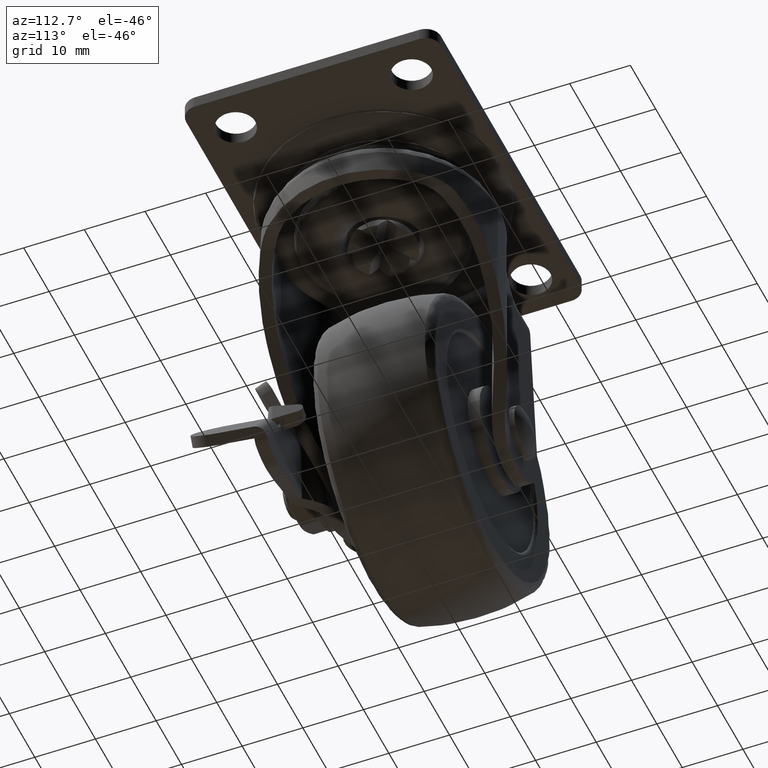
[diagram: clean part render]
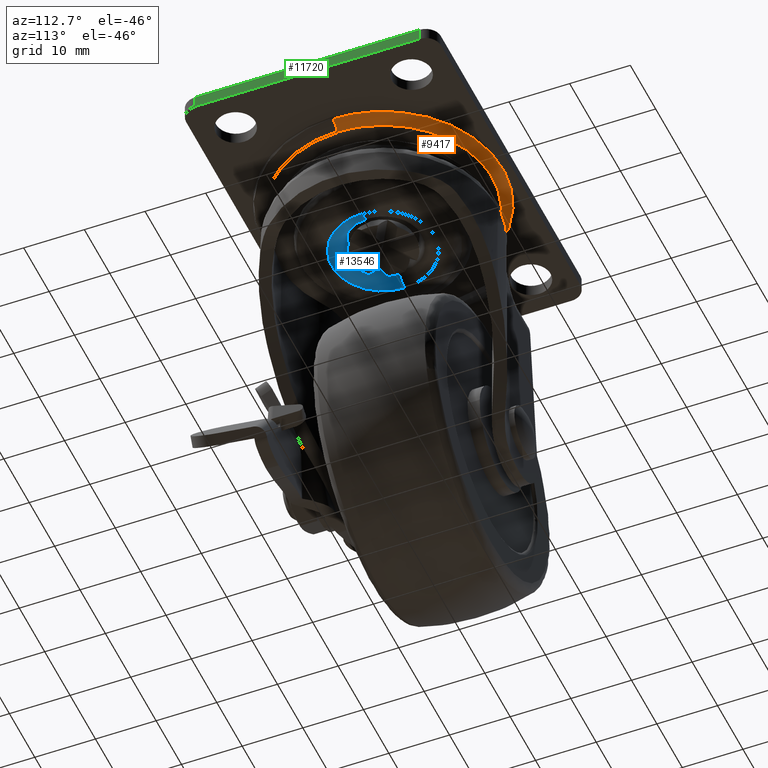
[diagram: same view with three faces highlighted in distinct colors, each labeled with its STEP entity id]
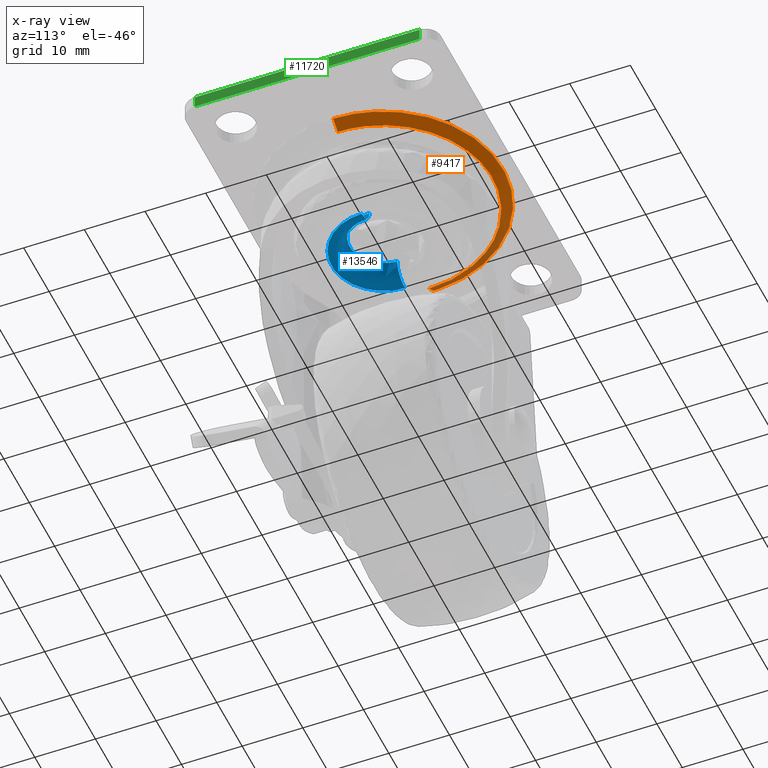
[diagram: x-ray of the same camera — body ghosted, the three highlighted faces saturated]
A machine part, auxiliary view with three faces highlighted in distinct colors.
The next image is the same camera in x-ray (body ghosted, the three faces saturated) — at least one of them is partly hidden behind the body in this view.
Their STEP definitions:

[orange] entity #9417 — the highlighted face is a freeform B-spline surface patch.
#9180=CARTESIAN_POINT('',(-17.967794168879529,7.266735E-015,-3.448837009886887));
#9181=VERTEX_POINT('',#9180);
#9197=CARTESIAN_POINT('',(-10.005826407057571,14.923976083037379,-3.448836947906459));
#9198=VERTEX_POINT('',#9197);
#9199=CARTESIAN_POINT('',(-17.967794168879529,7.266735E-015,-3.448837009886887));
#9200=CARTESIAN_POINT('',(-17.967794159970676,9.585849988176255,-3.448836986129341));
#9201=CARTESIAN_POINT('',(-10.005826407057565,14.923976083037379,-3.448836947906459));
#9209=(BOUNDED_CURVE()B_SPLINE_CURVE(2,(#9199,#9200,#9201),.UNSPECIFIED.,.F.,.U.)B_SPLINE_CURVE_WITH_KNOTS((3,3),(0.0,0.154483115044822),.UNSPECIFIED.)CURVE()GEOMETRIC_REPRESENTATION_ITEM()RATIONAL_B_SPLINE_CURVE((1.0,0.819011772728773,0.861700546539941))REPRESENTATION_ITEM(''));
#9210=EDGE_CURVE('',#9181,#9198,#9209,.T.);
#9272=CARTESIAN_POINT('',(17.967794126128311,7.186081E-015,-3.448836944598952));
#9273=VERTEX_POINT('',#9272);
#9291=CARTESIAN_POINT('',(-10.005826407057565,14.923976083037379,-3.448836947906459));
#9292=CARTESIAN_POINT('',(-5.465884856966354,17.967794058958017,-3.448836943513973));
#9293=CARTESIAN_POINT('',(-7.713862E-009,17.967794063000230,-3.448836940810682));
#9294=CARTESIAN_POINT('',(17.967794130881206,17.967794076288037,-3.448836931924260));
#9295=CARTESIAN_POINT('',(17.967794126128311,7.186081E-015,-3.448836944598952));
#9303=(BOUNDED_CURVE()B_SPLINE_CURVE(2,(#9291,#9292,#9293,#9294,#9295),.UNSPECIFIED.,.F.,.U.)B_SPLINE_CURVE_WITH_KNOTS((3,2,3),(0.154483115044822,0.250000000000000,0.500000000000000),.UNSPECIFIED.)CURVE()GEOMETRIC_REPRESENTATION_ITEM()RATIONAL_B_SPLINE_CURVE((0.861700546539941,0.888095008457774,1.0,0.707106781186548,1.0))REPRESENTATION_ITEM(''));
#9304=EDGE_CURVE('',#9198,#9273,#9303,.T.);
#9309=CARTESIAN_POINT('',(-17.878958393172443,-0.499837350001566,-3.506934187856735));
#9310=CARTESIAN_POINT('',(-18.859286881559211,-0.527244136403251,-2.866455194141534));
#9311=CARTESIAN_POINT('',(-19.826528489806680,-0.554285056329677,-2.206378715384771));
#9312=CARTESIAN_POINT('',(-17.878958393172447,-0.251374138794523,-3.506934187856736));
#9313=CARTESIAN_POINT('',(-18.859286881559211,-0.265157337126595,-2.866455194141533));
#9314=CARTESIAN_POINT('',(-19.826528489806687,-0.278756536863661,-2.206378715384771));
#9315=CARTESIAN_POINT('',(-17.878958393172464,17.878958393172464,-3.506934187856728));
#9316=CARTESIAN_POINT('',(-18.859286881559225,18.859286881559225,-2.866455194141526));
#9317=CARTESIAN_POINT('',(-19.826528489806702,19.826528489806687,-2.206378715384764));
#9318=CARTESIAN_POINT('',(0.0,17.878958393172471,-3.506934187856735));
#9319=CARTESIAN_POINT('',(0.0,18.859286881559221,-2.866455194141533));
#9320=CARTESIAN_POINT('',(0.0,19.826528489806702,-2.206378715384771));
#9321=CARTESIAN_POINT('',(17.878958393172450,17.878958393172482,-3.506934187856728));
#9322=CARTESIAN_POINT('',(18.859286881559207,18.859286881559225,-2.866455194141526));
#9323=CARTESIAN_POINT('',(19.826528489806687,19.826528489806702,-2.206378715384764));
#9324=CARTESIAN_POINT('',(17.878958393172447,-0.251374138794521,-3.506934187856736));
#9325=CARTESIAN_POINT('',(18.859286881559211,-0.265157337126593,-2.866455194141533));
#9326=CARTESIAN_POINT('',(19.826528489806677,-0.278756536863659,-2.206378715384771));
#9327=CARTESIAN_POINT('',(17.878958393172443,-0.499837350001562,-3.506934187856735));
#9328=CARTESIAN_POINT('',(18.859286881559200,-0.527244136403247,-2.866455194141534));
#9329=CARTESIAN_POINT('',(19.826528489806684,-0.554285056329672,-2.206378715384771));
#9337=(BOUNDED_SURFACE()B_SPLINE_SURFACE(2,2,((#9309,#9312,#9315,#9318,#9321,#9324,#9327),(#9310,#9313,#9316,#9319,#9322,#9325,#9328),(#9311,#9314,#9317,#9320,#9323,#9326,#9329)),.UNSPECIFIED.,.F.,.F.,.U.)B_SPLINE_SURFACE_WITH_KNOTS((3,3),(3,1,2,1,3),(0.0,2.346661540120819),(0.0,0.656993359620365,33.506661340638317,66.356329321656276,67.013322681276634),.UNSPECIFIED.)GEOMETRIC_REPRESENTATION_ITEM()RATIONAL_B_SPLINE_SURFACE(((0.967957524729334,0.962353021665173,0.676523365392959,0.956748518601012,0.676523365392959,0.962353021665173,0.967957524729334),(0.965942650416256,0.960349813534725,0.675115132576640,0.954756976653194,0.675115132576640,0.960349813534725,0.965942650416256),(0.964029572695671,0.958447812591450,0.673778047276177,0.952866052487229,0.673778047276177,0.958447812591450,0.964029572695671)))REPRESENTATION_ITEM('')SURFACE());
#9338=CARTESIAN_POINT('',(-19.738482955493620,7.280491E-015,-2.266404726515944));
#9339=VERTEX_POINT('',#9338);
#9340=CARTESIAN_POINT('',(-17.967794168879529,7.266735E-015,-3.448837009886886));
#9341=CARTESIAN_POINT('',(-18.858547330327294,7.273912E-015,-2.865720480932562));
#9342=CARTESIAN_POINT('',(-19.738482955493616,7.280491E-015,-2.266404726515944));
#9350=(BOUNDED_CURVE()B_SPLINE_CURVE(2,(#9340,#9341,#9342),.UNSPECIFIED.,.F.,.U.)B_SPLINE_CURVE_WITH_KNOTS((3,3),(0.077765708664373,0.085695271759721),.UNSPECIFIED.)CURVE()GEOMETRIC_REPRESENTATION_ITEM()RATIONAL_B_SPLINE_CURVE((0.956567842353955,0.954761339502467,0.953038006954824))REPRESENTATION_ITEM(''));
#9351=EDGE_CURVE('',#9181,#9339,#9350,.T.);
#9352=ORIENTED_EDGE('',*,*,#9351,.T.);
#9353=CARTESIAN_POINT('',(-19.724458226879221,0.743947028509194,-2.266404724086372));
#9354=VERTEX_POINT('',#9353);
#9355=CARTESIAN_POINT('',(-19.738482955493620,7.280491E-015,-2.266404726515944));
#9356=CARTESIAN_POINT('',(-19.738482957275910,0.372105709898370,-2.266404725301157));
#9357=CARTESIAN_POINT('',(-19.724458226879218,0.743947028509194,-2.266404724086373));
#9365=(BOUNDED_CURVE()B_SPLINE_CURVE(2,(#9355,#9356,#9357),.UNSPECIFIED.,.F.,.U.)B_SPLINE_CURVE_WITH_KNOTS((3,3),(0.0,0.006613471418702),.UNSPECIFIED.)CURVE()GEOMETRIC_REPRESENTATION_ITEM()RATIONAL_B_SPLINE_CURVE((1.0,0.992251836274583,0.984913610623929))REPRESENTATION_ITEM(''));
#9366=EDGE_CURVE('',#9339,#9354,#9365,.T.);
#9367=ORIENTED_EDGE('',*,*,#9366,.T.);
#9368=CARTESIAN_POINT('',(19.738482955493620,7.280491E-015,-2.266404726515952));
#9369=VERTEX_POINT('',#9368);
#9370=CARTESIAN_POINT('',(-19.724458226879221,0.743947028509194,-2.266404724086372));
#9371=CARTESIAN_POINT('',(-19.685429487978301,1.780255353292062,-2.266404724087602));
#9372=CARTESIAN_POINT('',(-19.438865554485819,3.886435049534467,-2.266404724100391));
#9373=CARTESIAN_POINT('',(-18.584748811807650,6.888918850746023,-2.266404724149544));
#9374=CARTESIAN_POINT('',(-17.405273823368010,9.428506826221074,-2.266404724219252));
#9375=CARTESIAN_POINT('',(-16.185886309420461,11.351418811551060,-2.266404724292108));
#9376=CARTESIAN_POINT('',(-14.909609762444729,12.988745288680169,-2.266404724368773));
#9377=CARTESIAN_POINT('',(-13.553343299568740,14.401008457029210,-2.266404724450659));
#9378=CARTESIAN_POINT('',(-11.903595639439670,15.789240136399350,-2.266404724550569));
#9379=CARTESIAN_POINT('',(-9.920373908696421,17.135860788100729,-2.266404724671076));
#9380=CARTESIAN_POINT('',(-7.769347624029045,18.201775639419889,-2.266404724802273));
#9381=CARTESIAN_POINT('',(-5.243543731765489,19.083289484120119,-2.266404724956574));
#9382=CARTESIAN_POINT('',(-3.013785413596319,19.562094883282029,-2.266404725093451));
#9383=CARTESIAN_POINT('',(-0.467073439207700,19.777021563157540,-2.266404725249561));
#9384=CARTESIAN_POINT('',(1.810409909151409,19.706469013745910,-2.266404725389934));
#9385=CARTESIAN_POINT('',(4.218221725236935,19.329617282866192,-2.266404725538661));
#9386=CARTESIAN_POINT('',(6.334354150027436,18.736048738899960,-2.266404725669417));
#9387=CARTESIAN_POINT('',(8.483067776979645,17.871377159629990,-2.266404725802665));
#9388=CARTESIAN_POINT('',(10.801347401869240,16.611701251510141,-2.266404725946809));
#9389=CARTESIAN_POINT('',(12.937573340601929,14.989982366052020,-2.266404726080038));
#9390=CARTESIAN_POINT('',(14.772621371443231,13.153588161112920,-2.266404726195121));
#9391=CARTESIAN_POINT('',(16.441446217237250,11.059963312618860,-2.266404726300285));
#9392=CARTESIAN_POINT('',(17.897616729156621,8.524605930683247,-2.266404726392777));
#9393=CARTESIAN_POINT('',(18.998311225348939,5.606531323382891,-2.266404726463913));
#9394=CARTESIAN_POINT('',(19.604784451161770,2.831946890612789,-2.266404726504454));
#9395=CARTESIAN_POINT('',(19.738520825103759,0.917389921995687,-2.266404726515011));
#9396=CARTESIAN_POINT('',(19.738482955493620,7.280491E-015,-2.266404726515952));
#9397=B_SPLINE_CURVE_WITH_KNOTS('',3,(#9370,#9371,#9372,#9373,#9374,#9375,#9376,#9377,#9378,#9379,#9380,#9381,#9382,#9383,#9384,#9385,#9386,#9387,#9388,#9389,#9390,#9391,#9392,#9393,#9394,#9395,#9396),.UNSPECIFIED.,.F.,.U.,(4,1,1,1,1,1,1,1,1,1,1,1,1,1,1,1,1,1,1,1,1,1,1,1,4),(0.000000081676824,3.111127001948766,6.341978344927604,9.333527093660926,11.487415033545791,13.162664601564879,15.555884491616920,17.350794098932891,19.624347438317859,22.735554745021950,24.530442091296859,27.641643752250360,29.556178303833629,32.188697832019599,34.462218622888258,36.855437547559688,38.770016565529737,41.402560571859638,44.753076955971203,46.787312989425530,49.180527305624999,52.770368841427469,55.522536103162892,58.514074629033388,61.266243588155170),.UNSPECIFIED.);
#9398=EDGE_CURVE('',#9354,#9369,#9397,.T.);
#9399=ORIENTED_EDGE('',*,*,#9398,.T.);
#9400=CARTESIAN_POINT('',(17.967794126128311,7.186081E-015,-3.448836944598952));
#9401=CARTESIAN_POINT('',(18.858547308951742,7.233585E-015,-2.865720448288673));
#9402=CARTESIAN_POINT('',(19.738482955493627,7.280491E-015,-2.266404726515952));
#9410=(BOUNDED_CURVE()B_SPLINE_CURVE(2,(#9400,#9401,#9402),.UNSPECIFIED.,.F.,.U.)B_SPLINE_CURVE_WITH_KNOTS((3,3),(0.077765708664337,0.085695271759721),.UNSPECIFIED.)CURVE()GEOMETRIC_REPRESENTATION_ITEM()RATIONAL_B_SPLINE_CURVE((0.956567842353971,0.954761339502475,0.953038006954824))REPRESENTATION_ITEM(''));
#9411=EDGE_CURVE('',#9273,#9369,#9410,.T.);
#9412=ORIENTED_EDGE('',*,*,#9411,.F.);
#9413=ORIENTED_EDGE('',*,*,#9304,.F.);
#9414=ORIENTED_EDGE('',*,*,#9210,.F.);
#9415=EDGE_LOOP('',(#9352,#9367,#9399,#9412,#9413,#9414));
#9416=FACE_OUTER_BOUND('',#9415,.T.);
#9417=ADVANCED_FACE('',(#9416),#9337,.T.);

[blue] entity #13546 — the highlighted face is a freeform B-spline surface patch.
#13345=CARTESIAN_POINT('',(-5.499993000000000,-4.540477E-016,-9.343113000219951));
#13346=VERTEX_POINT('',#13345);
#13347=CARTESIAN_POINT('',(5.499993000000052,1.135119E-016,-9.343113000110026));
#13348=VERTEX_POINT('',#13347);
#13372=CARTESIAN_POINT('',(5.499993000000052,1.135119E-016,-9.343113000110026));
#13373=CARTESIAN_POINT('',(5.500038976709335,-0.359968909962408,-9.343113000110030));
#13374=CARTESIAN_POINT('',(5.435705105322527,-1.012397685405063,-9.343113000110673));
#13375=CARTESIAN_POINT('',(5.164990156455488,-1.967867112894748,-9.343113000113378));
#13376=CARTESIAN_POINT('',(4.754004969949441,-2.823197044725906,-9.343113000117462));
#13377=CARTESIAN_POINT('',(4.119083277709837,-3.701717288702358,-9.343113000123827));
#13378=CARTESIAN_POINT('',(3.351342367536704,-4.406184375455233,-9.343113000131501));
#13379=CARTESIAN_POINT('',(2.464070400907187,-4.945342719985794,-9.343113000140365));
#13380=CARTESIAN_POINT('',(1.646347386678708,-5.272346759164053,-9.343113000148561));
#13381=CARTESIAN_POINT('',(0.655861233867943,-5.494827170038756,-9.343113000158395));
#13382=CARTESIAN_POINT('',(-0.385606094148104,-5.526816348031240,-9.343113000168922));
#13383=CARTESIAN_POINT('',(-1.341774464013196,-5.354761324758011,-9.343113000178201));
#13384=CARTESIAN_POINT('',(-2.131787160282372,-5.088382979726488,-9.343113000186603));
#13385=CARTESIAN_POINT('',(-2.940712245944229,-4.687491725042563,-9.343113000194322));
#13386=CARTESIAN_POINT('',(-3.715334352598423,-4.098122549352423,-9.343113000201928));
#13387=CARTESIAN_POINT('',(-4.321294020686656,-3.429442007356717,-9.343113000208383));
#13388=CARTESIAN_POINT('',(-4.767629213490067,-2.778898996647621,-9.343113000212524));
#13389=CARTESIAN_POINT('',(-5.098418362724589,-2.111566218746797,-9.343113000215894));
#13390=CARTESIAN_POINT('',(-5.409537706622139,-1.169826710389667,-9.343113000219260));
#13391=CARTESIAN_POINT('',(-5.500149887266571,-0.472472583861568,-9.343113000218756));
#13392=CARTESIAN_POINT('',(-5.499993000000000,-4.540477E-016,-9.343113000219951));
#13393=B_SPLINE_CURVE_WITH_KNOTS('',3,(#13372,#13373,#13374,#13375,#13376,#13377,#13378,#13379,#13380,#13381,#13382,#13383,#13384,#13385,#13386,#13387,#13388,#13389,#13390,#13391,#13392),.UNSPECIFIED.,.F.,.U.,(4,1,1,1,1,1,1,1,1,1,1,1,1,1,1,1,1,1,4),(0.000000112099755,1.079908335292053,1.957343729221302,2.969797742527497,3.914739439909059,5.197158403316083,6.074622659011414,7.019539009730416,7.829510707776324,9.111858701394139,10.124310151249290,10.731759657047270,11.609203650761630,12.824142228538379,13.634092483999240,14.309051251051301,15.186517840517981,15.861479000729680,17.278846020412189),.UNSPECIFIED.);
#13394=EDGE_CURVE('',#13348,#13346,#13393,.T.);
#13428=CARTESIAN_POINT('',(-8.499992999713349,-8.187323E-016,-12.343113000000100));
#13429=VERTEX_POINT('',#13428);
#13430=CARTESIAN_POINT('',(-8.499992999713349,-1.637465E-015,-12.343113000000091));
#13431=CARTESIAN_POINT('',(-5.499993000219850,-1.060970E-015,-12.343112999713451));
#13432=CARTESIAN_POINT('',(-5.499992999999999,-9.080954E-016,-9.343113000219953));
#13440=(BOUNDED_CURVE()B_SPLINE_CURVE(2,(#13430,#13431,#13432),.UNSPECIFIED.,.F.,.U.)B_SPLINE_CURVE_WITH_KNOTS((3,3),(-1.726807299415991,-0.285995334119486),.UNSPECIFIED.)CURVE()GEOMETRIC_REPRESENTATION_ITEM()RATIONAL_B_SPLINE_CURVE((0.882788776183784,0.622603437770046,0.878205639028046))REPRESENTATION_ITEM(''));
#13441=EDGE_CURVE('',#13429,#13346,#13440,.T.);
#13443=CARTESIAN_POINT('',(8.499992999713349,4.093661E-016,-12.343113000000100));
#13444=VERTEX_POINT('',#13443);
#13470=CARTESIAN_POINT('',(8.499992999713349,8.187323E-016,-12.343113000000093));
#13471=CARTESIAN_POINT('',(5.499993000109924,5.304852E-016,-12.343112999713451));
#13472=CARTESIAN_POINT('',(5.499992999999999,4.540477E-016,-9.343113000110025));
#13480=(BOUNDED_CURVE()B_SPLINE_CURVE(2,(#13470,#13471,#13472),.UNSPECIFIED.,.F.,.U.)B_SPLINE_CURVE_WITH_KNOTS((3,3),(-1.726807299415991,-0.285995334082252),.UNSPECIFIED.)CURVE()GEOMETRIC_REPRESENTATION_ITEM()RATIONAL_B_SPLINE_CURVE((0.882788776183784,0.622603437763322,0.878205639041257))REPRESENTATION_ITEM(''));
#13481=EDGE_CURVE('',#13444,#13348,#13480,.T.);
#13487=CARTESIAN_POINT('',(8.708044895363683,0.243448526948603,-12.335890039613234));
#13488=CARTESIAN_POINT('',(8.708044895363683,0.122433155109976,-12.335890039613240));
#13489=CARTESIAN_POINT('',(8.708044895363683,-8.708044895363683,-12.335890039613236));
#13490=CARTESIAN_POINT('',(1.066393E-015,-8.708044895363683,-12.335890039613242));
#13491=CARTESIAN_POINT('',(-8.708044895363683,-8.708044895363685,-12.335890039613236));
#13492=CARTESIAN_POINT('',(-8.708044895363683,0.122433155109977,-12.335890039613238));
#13493=CARTESIAN_POINT('',(-8.708044895363683,0.243448526948606,-12.335890039613243));
#13494=CARTESIAN_POINT('',(5.266775131416745,0.147241850831017,-12.575120255352751));
#13495=CARTESIAN_POINT('',(5.266775131416743,0.074049675253446,-12.575120255352749));
#13496=CARTESIAN_POINT('',(5.266775131416745,-5.266775131416742,-12.575120255352745));
#13497=CARTESIAN_POINT('',(6.449726E-016,-5.266775131416744,-12.575120255352749));
#13498=CARTESIAN_POINT('',(-5.266775131416742,-5.266775131416745,-12.575120255352745));
#13499=CARTESIAN_POINT('',(-5.266775131416745,0.074049675253447,-12.575120255352749));
#13500=CARTESIAN_POINT('',(-5.266775131416745,0.147241850831019,-12.575120255352749));
#13501=CARTESIAN_POINT('',(5.507294085676548,0.153965976145179,-9.133940324424989));
#13502=CARTESIAN_POINT('',(5.507294085676549,0.077431317721718,-9.133940324424989));
#13503=CARTESIAN_POINT('',(5.507294085676549,-5.507294085676549,-9.133940324424987));
#13504=CARTESIAN_POINT('',(6.744267E-016,-5.507294085676549,-9.133940324424989));
#13505=CARTESIAN_POINT('',(-5.507294085676549,-5.507294085676549,-9.133940324424987));
#13506=CARTESIAN_POINT('',(-5.507294085676549,0.077431317721719,-9.133940324424989));
#13507=CARTESIAN_POINT('',(-5.507294085676549,0.153965976145181,-9.133940324424989));
#13515=(BOUNDED_SURFACE()B_SPLINE_SURFACE(2,2,((#13487,#13494,#13501),(#13488,#13495,#13502),(#13489,#13496,#13503),(#13490,#13497,#13504),(#13491,#13498,#13505),(#13492,#13499,#13506),(#13493,#13500,#13507)),.UNSPECIFIED.,.F.,.F.,.U.)B_SPLINE_SURFACE_WITH_KNOTS((3,1,2,1,3),(3,3),(0.0,0.288559223793069,14.716520413446821,29.144481603100569,29.433040826893642),(0.0,5.468181776310798),.UNSPECIFIED.)GEOMETRIC_REPRESENTATION_ITEM()RATIONAL_B_SPLINE_SURFACE(((0.920730318469245,0.602530283667150,0.915630244211508),(0.915399262344060,0.599041615275418,0.910328717669053),(0.643515399959645,0.421119527297086,0.639950864003831),(0.910068206218876,0.595552946883686,0.905027191126598),(0.643515399959645,0.421119527297086,0.639950864003831),(0.915399262344060,0.599041615275418,0.910328717669053),(0.920730318469245,0.602530283667150,0.915630244211508)))REPRESENTATION_ITEM('')SURFACE());
#13516=ORIENTED_EDGE('',*,*,#13441,.T.);
#13517=ORIENTED_EDGE('',*,*,#13394,.F.);
#13518=ORIENTED_EDGE('',*,*,#13481,.F.);
#13519=CARTESIAN_POINT('',(-8.499992999713349,-8.187323E-016,-12.343113000000100));
#13520=CARTESIAN_POINT('',(-8.500010591530808,-0.417239161763995,-12.343113000000111));
#13521=CARTESIAN_POINT('',(-8.438436701631851,-1.251718533702301,-12.343113000000100));
#13522=CARTESIAN_POINT('',(-8.186353929705263,-2.374283645776380,-12.343113000000070));
#13523=CARTESIAN_POINT('',(-7.804504547859065,-3.421159538692730,-12.343113000000200));
#13524=CARTESIAN_POINT('',(-7.265319845409225,-4.476261650146757,-12.343113000000059));
#13525=CARTESIAN_POINT('',(-6.508896913526227,-5.522765721576472,-12.343113000000120));
#13526=CARTESIAN_POINT('',(-5.498123607713191,-6.533569948960722,-12.343113000000191));
#13527=CARTESIAN_POINT('',(-4.389566695544949,-7.324507177335841,-12.343112999999880));
#13528=CARTESIAN_POINT('',(-3.136268324339466,-7.936177477117529,-12.343113000000191));
#13529=CARTESIAN_POINT('',(-1.736990562193736,-8.370104804088145,-12.343113000000219));
#13530=CARTESIAN_POINT('',(-0.278672111731590,-8.540873422846609,-12.343112999999690));
#13531=CARTESIAN_POINT('',(1.356890710547461,-8.440399673848798,-12.343113000000290));
#13532=CARTESIAN_POINT('',(2.849958136116120,-8.066424051064841,-12.343113000000031));
#13533=CARTESIAN_POINT('',(4.395843704879592,-7.335269901773188,-12.343113000000130));
#13534=CARTESIAN_POINT('',(5.552332857658727,-6.488494841483948,-12.343113000000111));
#13535=CARTESIAN_POINT('',(6.501103387718962,-5.516042899728166,-12.343113000000089));
#13536=CARTESIAN_POINT('',(7.248825076779035,-4.507942810589345,-12.343113000000130));
#13537=CARTESIAN_POINT('',(7.827393509041667,-3.392735553006538,-12.343113000000070));
#13538=CARTESIAN_POINT('',(8.348725912895619,-1.877455607156254,-12.343113000000120));
#13539=CARTESIAN_POINT('',(8.500284503136086,-0.764971769451393,-12.343112999999921));
#13540=CARTESIAN_POINT('',(8.499992999713349,4.093661E-016,-12.343113000000100));
#13541=B_SPLINE_CURVE_WITH_KNOTS('',3,(#13519,#13520,#13521,#13522,#13523,#13524,#13525,#13526,#13527,#13528,#13529,#13530,#13531,#13532,#13533,#13534,#13535,#13536,#13537,#13538,#13539,#13540),.UNSPECIFIED.,.F.,.U.,(4,1,1,1,1,1,1,1,1,1,1,1,1,1,1,1,1,1,1,4),(-0.000002783366515,1.251726473608358,2.503457979786720,3.442248471674454,4.589674829055479,6.050050233253529,7.301791311416210,8.866477083409873,10.118218648134199,11.474268253329489,13.247553997927350,14.499262889699020,16.376831173946361,17.837204855408000,19.610514144860471,20.653635653022992,21.905377421407358,23.365731956466320,24.408866331184740,26.703681644756770),.UNSPECIFIED.);
#13542=EDGE_CURVE('',#13429,#13444,#13541,.T.);
#13543=ORIENTED_EDGE('',*,*,#13542,.F.);
#13544=EDGE_LOOP('',(#13516,#13517,#13518,#13543));
#13545=FACE_OUTER_BOUND('',#13544,.T.);
#13546=ADVANCED_FACE('',(#13545),#13515,.T.);

[green] entity #11720 — the highlighted face is a freeform B-spline surface patch.
#11454=CARTESIAN_POINT('',(29.999993000000000,18.500000000000000,0.0));
#11455=VERTEX_POINT('',#11454);
#11522=CARTESIAN_POINT('',(29.999993000000000,-18.500000000000000,0.0));
#11523=VERTEX_POINT('',#11522);
#11537=CARTESIAN_POINT('',(29.999993000000000,-18.500000000000000,0.0));
#11538=CARTESIAN_POINT('',(29.999993000000000,18.500000000000000,0.0));
#11539=QUASI_UNIFORM_CURVE('',1,(#11537,#11538),.UNSPECIFIED.,.F.,.U.);
#11540=EDGE_CURVE('',#11523,#11455,#11539,.T.);
#11580=CARTESIAN_POINT('',(29.999993000000000,18.500000000000000,-1.999963000000160));
#11581=VERTEX_POINT('',#11580);
#11597=CARTESIAN_POINT('',(29.999993000000000,-18.500000000000000,-1.999963000000160));
#11598=VERTEX_POINT('',#11597);
#11599=CARTESIAN_POINT('',(29.999993000000000,-18.500000000000000,-1.999963000000160));
#11600=CARTESIAN_POINT('',(29.999993000000000,18.500000000000000,-1.999963000000160));
#11601=QUASI_UNIFORM_CURVE('',1,(#11599,#11600),.UNSPECIFIED.,.F.,.U.);
#11602=EDGE_CURVE('',#11598,#11581,#11601,.T.);
#11701=CARTESIAN_POINT('',(29.999993000000000,-20.348149928286819,-2.099861147973852));
#11702=CARTESIAN_POINT('',(29.999993000000000,20.348150920704160,-2.099861147973852));
#11703=CARTESIAN_POINT('',(29.999993000000000,-20.348149928286819,0.099898201616880));
#11704=CARTESIAN_POINT('',(29.999993000000000,20.348150920704160,0.099898201616880));
#11705=B_SPLINE_SURFACE_WITH_KNOTS('',1,1,((#11701,#11703),(#11702,#11704)),.UNSPECIFIED.,.F.,.F.,.U.,(2,2),(2,2),(0.0,40.696300848990980),(0.0,2.199759349590731),.UNSPECIFIED.);
#11706=ORIENTED_EDGE('',*,*,#11540,.F.);
#11707=CARTESIAN_POINT('',(29.999993000000000,-18.500000000000000,-1.999963000000160));
#11708=CARTESIAN_POINT('',(29.999993000000000,-18.500000000000000,0.0));
#11709=QUASI_UNIFORM_CURVE('',1,(#11707,#11708),.UNSPECIFIED.,.F.,.U.);
#11710=EDGE_CURVE('',#11598,#11523,#11709,.T.);
#11711=ORIENTED_EDGE('',*,*,#11710,.F.);
#11712=ORIENTED_EDGE('',*,*,#11602,.T.);
#11713=CARTESIAN_POINT('',(29.999993000000000,18.500000000000000,-1.999963000000160));
#11714=CARTESIAN_POINT('',(29.999993000000000,18.500000000000000,0.0));
#11715=QUASI_UNIFORM_CURVE('',1,(#11713,#11714),.UNSPECIFIED.,.F.,.U.);
#11716=EDGE_CURVE('',#11581,#11455,#11715,.T.);
#11717=ORIENTED_EDGE('',*,*,#11716,.T.);
#11718=EDGE_LOOP('',(#11706,#11711,#11712,#11717));
#11719=FACE_OUTER_BOUND('',#11718,.T.);
#11720=ADVANCED_FACE('',(#11719),#11705,.T.);